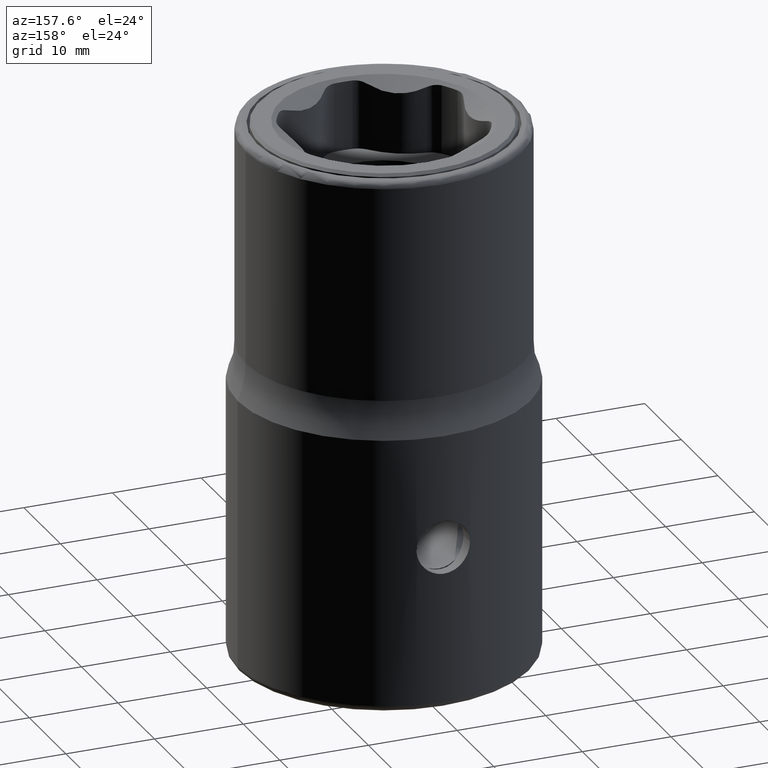
[diagram: clean part render]
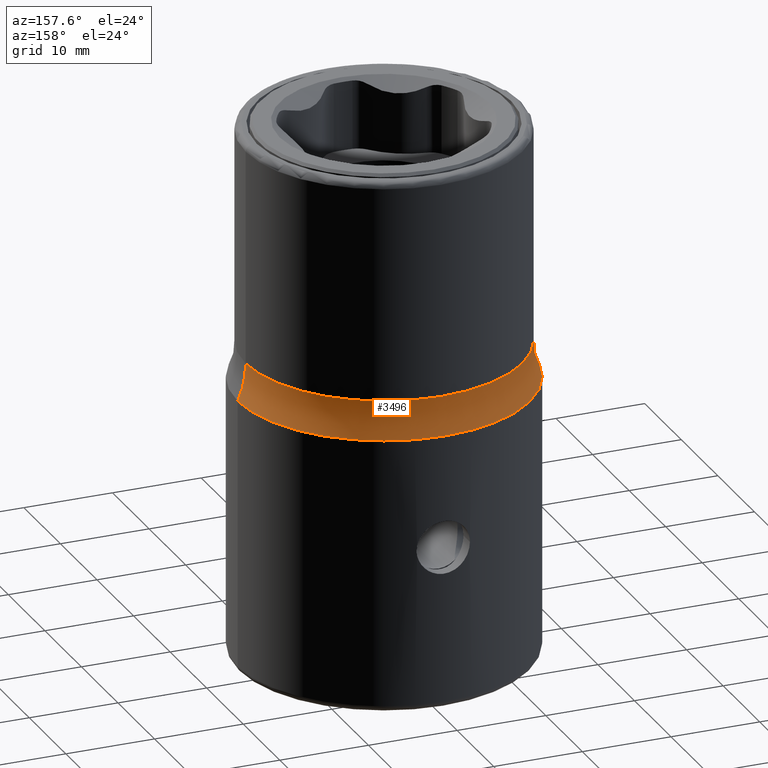
[diagram: same view with one face highlighted and labeled with its STEP entity id]
A machine part, auxiliary view. The second image highlights one B-rep face of the part: STEP entity #3496.
In plain terms, the highlighted toroidal blend (fillet) surface has major radius 25.6 mm and minor (blend) radius 10 mm.
Its self-contained STEP definition (entity closure, byte-faithful):
#2965=CARTESIAN_POINT('',(0.E0,0.E0,3.070000030501E1));
#2966=DIRECTION('',(0.E0,0.E0,1.E0));
#2967=DIRECTION('',(-1.E0,0.E0,0.E0));
#2968=AXIS2_PLACEMENT_3D('',#2965,#2966,#2967);
#3057=CARTESIAN_POINT('',(2.559999999444E1,-5.336535780950E-4,
3.484608279334E1));
#3058=DIRECTION('',(2.084584289438E-5,9.999999997827E-1,0.E0));
#3059=DIRECTION('',(-9.099999869110E-1,1.896971676515E-5,-4.146082771270E-1));
#3060=AXIS2_PLACEMENT_3D('',#3057,#3058,#3059);
#3065=CARTESIAN_POINT('',(-2.559999999444E1,5.336535780995E-4,
3.484608279334E1));
#3066=DIRECTION('',(-2.084584289447E-5,-9.999999997827E-1,0.E0));
#3067=DIRECTION('',(9.099999869110E-1,-1.896971676524E-5,-4.146082771270E-1));
#3068=AXIS2_PLACEMENT_3D('',#3065,#3066,#3067);
#3081=CARTESIAN_POINT('',(0.E0,0.E0,3.484608279334E1));
#3082=DIRECTION('',(0.E0,0.E0,1.E0));
#3083=DIRECTION('',(-1.E0,0.E0,0.E0));
#3084=AXIS2_PLACEMENT_3D('',#3081,#3082,#3083);
#3213=CARTESIAN_POINT('',(-1.65E1,0.E0,3.070000030501E1));
#3214=CARTESIAN_POINT('',(1.65E1,0.E0,3.070000030501E1));
#3215=VERTEX_POINT('',#3213);
#3216=VERTEX_POINT('',#3214);
#3217=CARTESIAN_POINT('',(-1.56E1,0.E0,3.484608279334E1));
#3218=CARTESIAN_POINT('',(1.56E1,0.E0,3.484608279334E1));
#3219=VERTEX_POINT('',#3217);
#3220=VERTEX_POINT('',#3218);
#3484=CARTESIAN_POINT('',(0.E0,0.E0,3.484608279334E1));
#3485=DIRECTION('',(0.E0,0.E0,1.E0));
#3486=DIRECTION('',(-9.999999987027E-1,5.093666178036E-5,0.E0));
#3487=AXIS2_PLACEMENT_3D('',#3484,#3485,#3486);
#3488=TOROIDAL_SURFACE('',#3487,2.56E1,1.E1);
#3489=ORIENTED_EDGE('',*,*,#3418,.F.);
#3490=ORIENTED_EDGE('',*,*,#3479,.T.);
#3492=ORIENTED_EDGE('',*,*,#3491,.T.);
#3493=ORIENTED_EDGE('',*,*,#3475,.F.);
#3494=EDGE_LOOP('',(#3489,#3490,#3492,#3493));
#3495=FACE_OUTER_BOUND('',#3494,.F.);
#3496=ADVANCED_FACE('',(#3495),#3488,.F.);
#2969=CIRCLE('',#2968,1.65E1);
#3061=CIRCLE('',#3060,1.E1);
#3069=CIRCLE('',#3068,1.E1);
#3085=CIRCLE('',#3084,1.56E1);
#3418=EDGE_CURVE('',#3215,#3216,#2969,.T.);
#3475=EDGE_CURVE('',#3216,#3220,#3061,.T.);
#3479=EDGE_CURVE('',#3215,#3219,#3069,.T.);
#3491=EDGE_CURVE('',#3219,#3220,#3085,.T.);